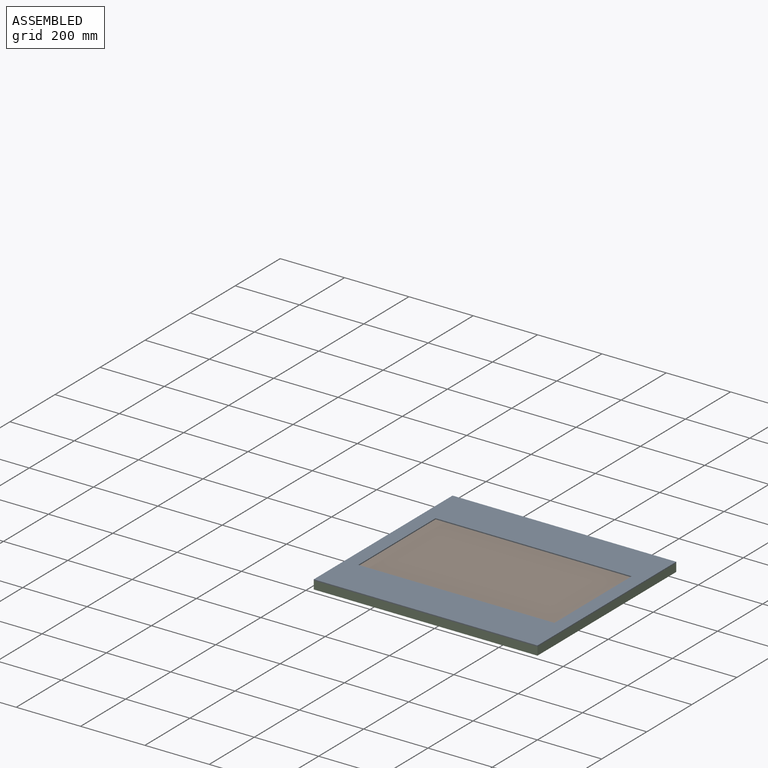
[diagram: assembled view]
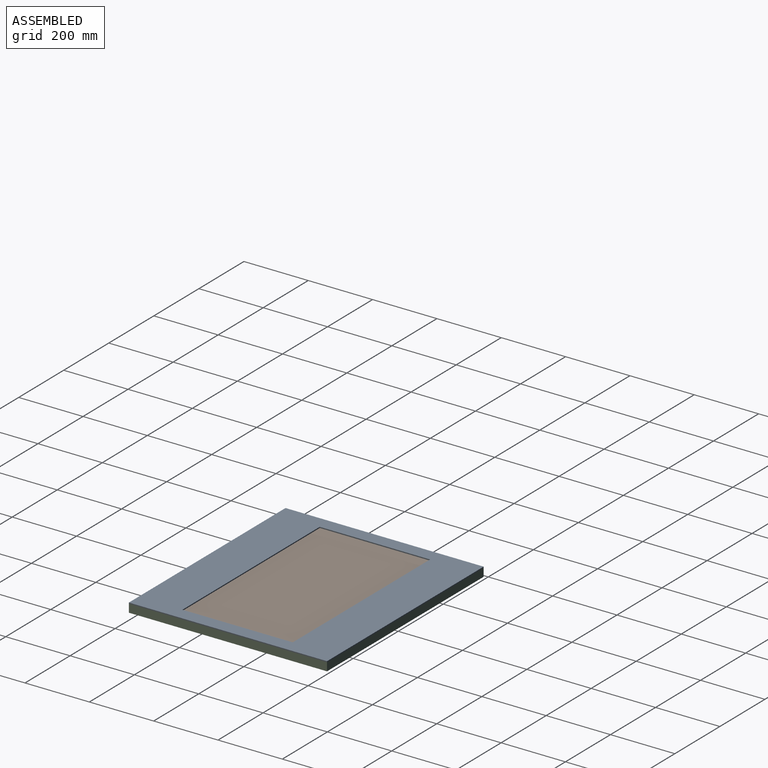
[diagram: assembled view, second angle]
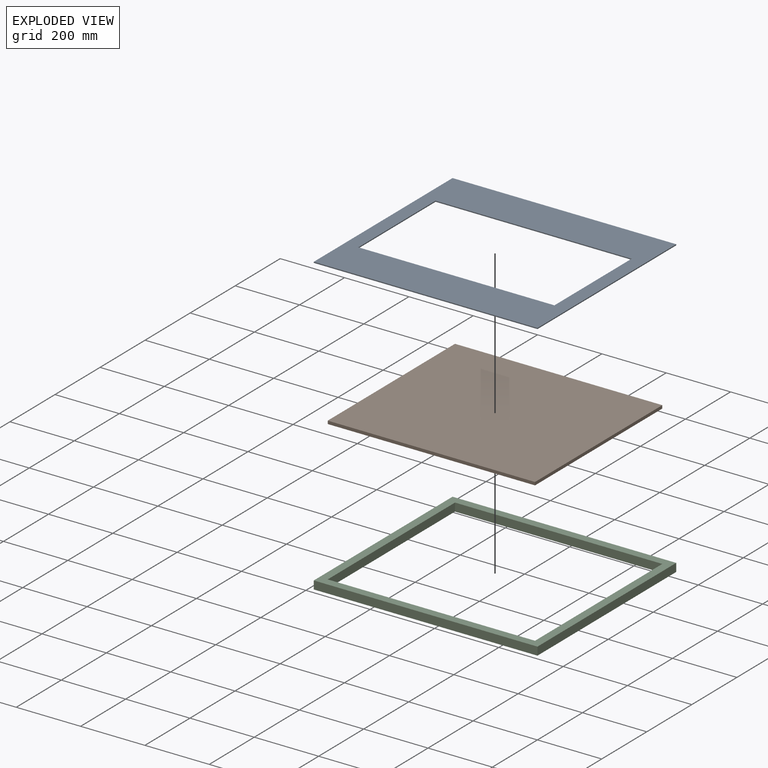
[diagram: exploded view]
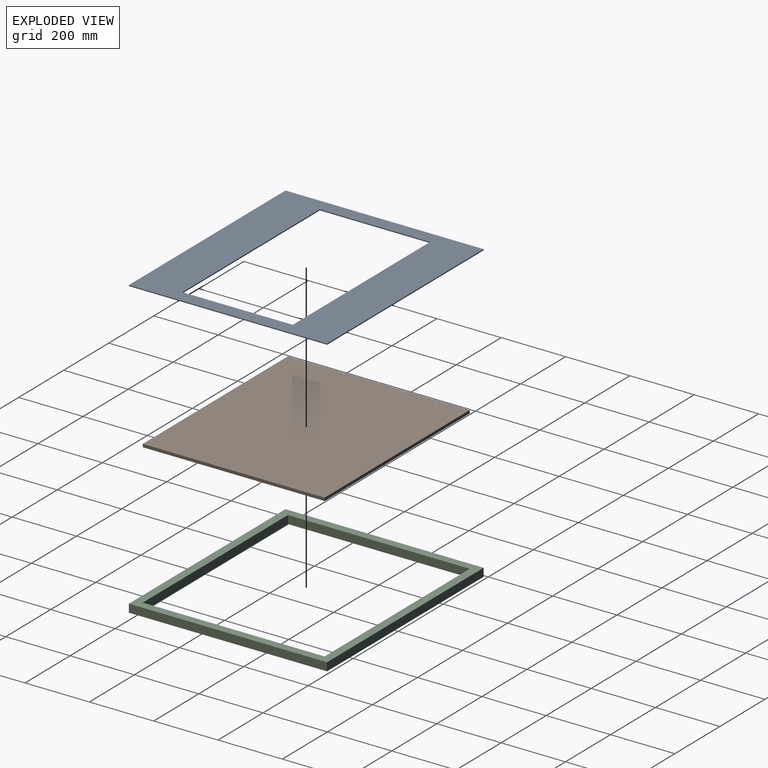
[diagram: exploded view, second angle]
ASSEMBLY  parts=3 mates=6
PART A: 10 faces, bbox 695.3x616x3.2 mm
  f0: plane 615.95x3.18mm, normal (-1,0,0), area 1955.6mm2, adj f1,f7,f8,f9
  f1: plane 695.33x3.18mm, normal (0,-1,0), area 2207.7mm2, adj f0,f2,f8,f9
  f2: plane 615.95x3.18mm, normal (1,0,0), area 1955.6mm2, adj f1,f7,f8,f9
  f3: plane 609.6x3.18mm, normal (0,1,0), area 1935.5mm2, adj f4,f6,f8,f9
  f4: plane 342.9x3.18mm, normal (1,0,0), area 1088.7mm2, adj f3,f5,f8,f9
  f5: plane 609.6x3.18mm, normal (0,-1,0), area 1935.5mm2, adj f4,f6,f8,f9
  f6: plane 342.9x3.18mm, normal (-1,0,0), area 1088.7mm2, adj f3,f5,f8,f9
  f7: plane 695.33x3.18mm, normal (0,1,0), area 2207.7mm2, adj f0,f2,f8,f9
  f8: plane 695.33x615.95mm, normal (0,0,1), area 219253.6mm2, adj f0,f1,f2,f3,f4,f5,f6,f7
  f9: plane 695.33x615.95mm, normal (0,0,-1), area 219253.6mm2, adj f0,f1,f2,f3,f4,f5,f6,f7
PART B: 6 faces, bbox 644.5x565.2x9.5 mm
  f0: plane 644.53x9.53mm, normal (0,-1,0), area 6139.1mm2, adj f1,f3,f4,f5
  f1: plane 565.15x9.53mm, normal (1,0,0), area 5383.1mm2, adj f0,f2,f4,f5
  f2: plane 644.53x9.53mm, normal (0,1,0), area 6139.1mm2, adj f1,f3,f4,f5
  f3: plane 565.15x9.53mm, normal (-1,0,0), area 5383.1mm2, adj f0,f2,f4,f5
  f4: plane 644.53x565.15mm, normal (0,0,-1), area 364253.3mm2, adj f0,f1,f2,f3
  f5: plane 644.53x565.15mm, normal (0,0,1), area 364253.3mm2, adj f0,f1,f2,f3
PART C: 10 faces, bbox 695.3x616x25.4 mm
  f0: plane 565.15x25.4mm, normal (-1,0,0), area 14354.8mm2, adj f1,f7,f8,f9
  f1: plane 644.53x25.4mm, normal (0,1,0), area 16370.9mm2, adj f0,f2,f8,f9
  f2: plane 565.15x25.4mm, normal (1,0,0), area 14354.8mm2, adj f1,f7,f8,f9
  f3: plane 695.33x25.4mm, normal (0,-1,0), area 17661.3mm2, adj f4,f6,f8,f9
  f4: plane 615.95x25.4mm, normal (1,0,0), area 15645.1mm2, adj f3,f5,f8,f9
  f5: plane 695.33x25.4mm, normal (0,1,0), area 17661.3mm2, adj f4,f6,f8,f9
  f6: plane 615.95x25.4mm, normal (-1,0,0), area 15645.1mm2, adj f3,f5,f8,f9
  f7: plane 644.53x25.4mm, normal (0,-1,0), area 16370.9mm2, adj f0,f2,f8,f9
  f8: plane 695.33x615.95mm, normal (0,0,-1), area 64032.1mm2, adj f0,f1,f2,f3,f4,f5,f6,f7
  f9: plane 695.33x615.95mm, normal (0,0,1), area 64032.1mm2, adj f0,f1,f2,f3,f4,f5,f6,f7
PLACE A t=(137,99.36,-265.91)mm
PLACE B t=(137,99.36,-265.91)mm
PLACE C t=(137,99.36,-265.91)mm
MATE planar B.f3 <-> C.f2  axis (-1,0,0) through (256.31,99.36,-270.68)mm
MATE planar A.f9 <-> C.f9  axis (0,0,-1) through (578.58,99.36,-265.91)mm
MATE planar A.f0 <-> C.f6  axis (-1,0,0) through (230.91,99.36,-264.33)mm
MATE planar C.f7 <-> B.f2  axis (0,-1,0) through (578.58,381.94,-278.61)mm
MATE planar A.f1 <-> C.f3  axis (0,-1,0) through (578.58,-208.61,-264.33)mm
MATE planar B.f5 <-> C.f9  axis (0,0,1) through (578.58,99.36,-265.91)mm
